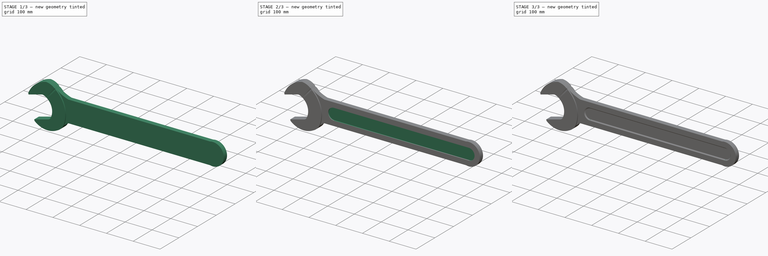
[diagram: build sequence overview — one tinted view per stage of 3, left to right]
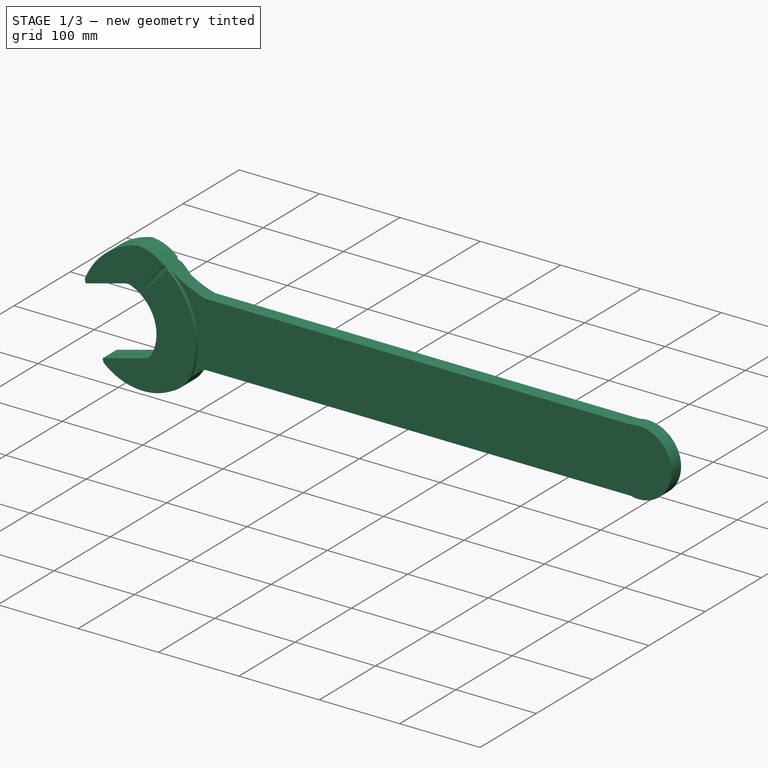
[diagram: stage 1 of 3 — iso view after this stage's code; geometry added in this stage tinted green]
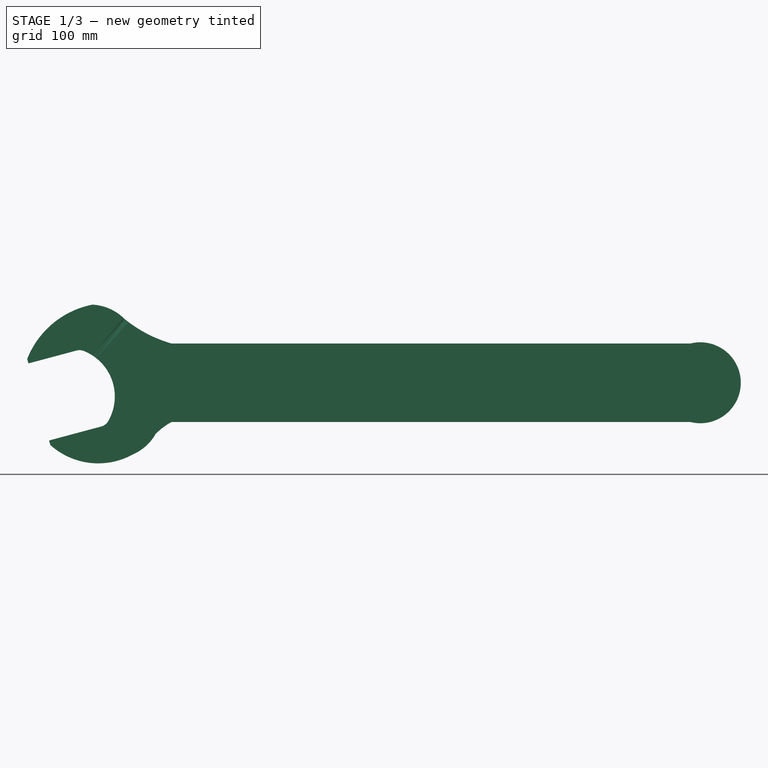
[diagram: stage 1 of 3 — front view after this stage's code; geometry added in this stage tinted green]
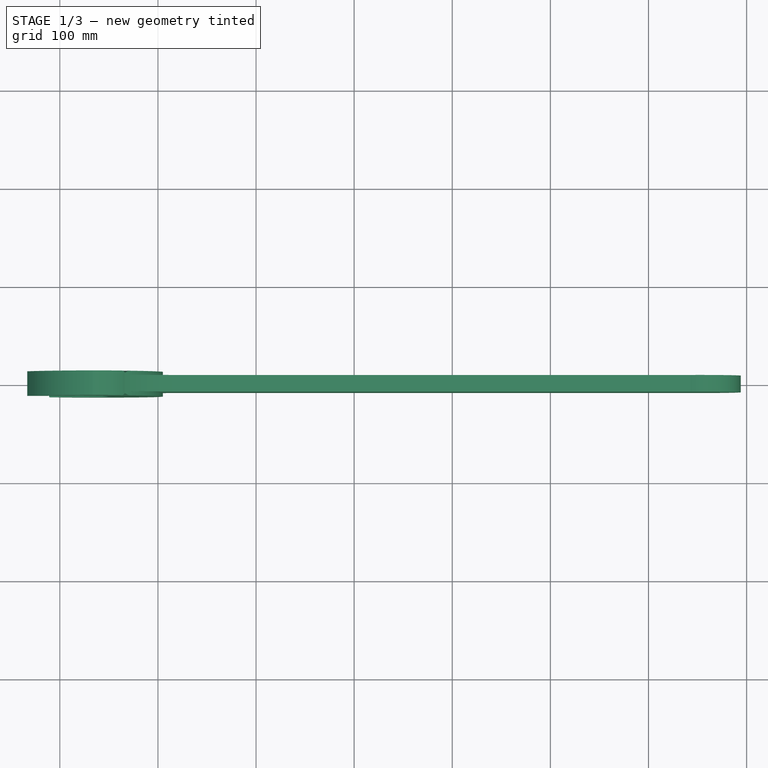
[diagram: stage 1 of 3 — top view after this stage's code; geometry added in this stage tinted green]
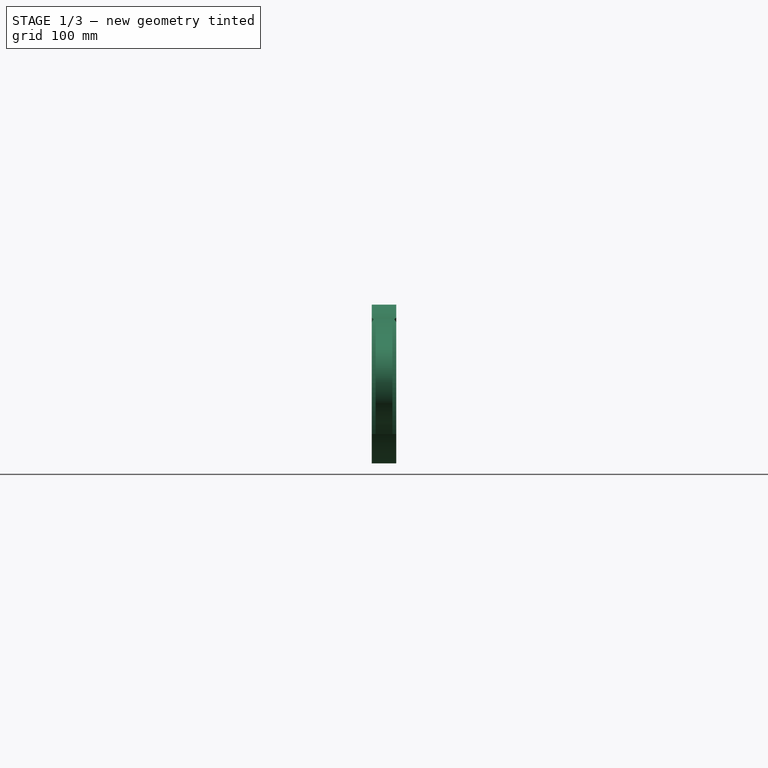
[diagram: stage 1 of 3 — right view after this stage's code; geometry added in this stage tinted green]
FCSTD DOCUMENT  (FreeCAD 0.21R33771 (Git))
Label: gajechnij1
License: All rights reserved
LicenseURL: http://en.wikipedia.org/wiki/All_rights_reserved
objects: Sketcher::SketchObject×4, PartDesign::Pad×2, PartDesign::Plane×2, PartDesign::Pocket×2, PartDesign::Chamfer×2, PartDesign::Body×1
note: 19 computed .brp shape members not serialized (recipe doc carries the construction recipe); baked Part::Feature solids carry a one-line shape summary decoded from their .brp

FEATURE [Sketcher::SketchObject] Sketch
  FullyConstrained = false
  MapMode = 5
  Placement = pos=(0,0,0) rot=(1,0,0;1.5708rad)
  Support = -> [XZ_Plane]
  sketch-geometry (32):
    g0: ArcOfCircle CenterX=-94.9065 CenterY=72.2853 CenterZ=0 NormalX=0 NormalY=0 NormalZ=1 AngleXU=0 Radius=100 StartAngle=5.89494 EndAngle=7.19503
    g1: ArcOfCircle CenterX=-69.3883 CenterY=116.352 CenterZ=0 NormalX=0 NormalY=0 NormalZ=1 AngleXU=0 Radius=50 StartAngle=0.77529 EndAngle=1.51739
    g2: ArcOfCircle CenterX=-49.4821 CenterY=77.9471 CenterZ=0 NormalX=0 NormalY=0 NormalZ=1 AngleXU=0 Radius=90 StartAngle=1.76351 EndAngle=2.76625
    g3: LineSegment StartX=-131.986 StartY=106.349 StartZ=0 EndX=-83.0466 EndY=119.462 EndZ=0
    g4: LineSegment StartX=-57.8758 StartY=42.0398 StartZ=0 EndX=-110.945 EndY=27.82 EndZ=0
    g5: ArcOfCircle CenterX=-93.9405 CenterY=72.5441 CenterZ=0 NormalX=0 NormalY=0 NormalZ=1 AngleXU=0 Radius=50 StartAngle=5.76222 EndAngle=7.47668
    g6: ArcOfCircle CenterX=-79.9408 CenterY=107.871 CenterZ=0 NormalX=0 NormalY=0 NormalZ=1 AngleXU=0 Radius=12 StartAngle=1.19349 EndAngle=1.8326
    g7: ArcOfCircle CenterX=-60.9816 CenterY=53.6309 CenterZ=0 NormalX=0 NormalY=0 NormalZ=1 AngleXU=0 Radius=12 StartAngle=4.97419 EndAngle=5.76222
    g8: LineSegment StartX=128.45 StartY=132.133 StartZ=0 EndX=-335.336 EndY=7.8623 EndZ=0
    g9: LineSegment StartX=-155.813 StartY=183.681 StartZ=0 EndX=-69.9856 EndY=-136.632 EndZ=0
    g10: LineSegment StartX=-154.799 StartY=191.489 StartZ=0 EndX=-63.0997 EndY=-150.739 EndZ=0
    g11: GeomPoint X=-45.6442 Y=85.485 Z=0
    g12: ArcOfCircle CenterX=-45.7284 CenterY=59.293 CenterZ=0 NormalX=0 NormalY=0 NormalZ=1 AngleXU=0 Radius=50 StartAngle=5.12304 EndAngle=5.76273
    g13: ArcOfCircle CenterX=-60.85 CenterY=77.4972 CenterZ=0 NormalX=0 NormalY=0 NormalZ=1 AngleXU=0 Radius=73.026 StartAngle=3.97934 EndAngle=5.2135
    g14: LineSegment StartX=-66.7193 StartY=166.281 StartZ=0 EndX=-25.7683 EndY=13.4498 EndZ=0
    g15: LineSegment StartX=-33.6774 StartY=151.348 StartZ=0 EndX=-2.34888 EndY=34.429 EndZ=0
    g16: ArcOfCircle CenterX=51.1394 CenterY=256.378 CenterZ=0 NormalX=0 NormalY=0 NormalZ=1 AngleXU=0 Radius=135 StartAngle=4.03306 EndAngle=4.43239
    g17: LineSegment StartX=13.832 StartY=126.635 StartZ=0 EndX=542.64 EndY=126.635 EndZ=0
    g18: ArcOfCircle CenterX=45.9304 CenterY=-12.7447 CenterZ=0 NormalX=0 NormalY=0 NormalZ=1 AngleXU=0 Radius=67.5 StartAngle=2.06636 EndAngle=2.36778
    g19: LineSegment StartX=13.832 StartY=46.6349 StartZ=0 EndX=542.64 EndY=46.6349 EndZ=0
    g20: GeomPoint X=153.279 Y=126.635 Z=0
    g21: ArcOfCircle CenterX=552.783 CenterY=86.6349 CenterZ=0 NormalX=0 NormalY=0 NormalZ=1 AngleXU=0 Radius=41.2661 StartAngle=4.46404 EndAngle=8.10233
    g22: ArcOfCircle CenterX=49.3558 CenterY=86.6349 CenterZ=0 NormalX=0 NormalY=0 NormalZ=1 AngleXU=0 Radius=21.5438 StartAngle=1.5708 EndAngle=4.71239
    g23: ArcOfCircle CenterX=552.783 CenterY=86.6349 CenterZ=0 NormalX=0 NormalY=0 NormalZ=1 AngleXU=0 Radius=21.5438 StartAngle=4.71239 EndAngle=7.85398
    g24: LineSegment StartX=49.3558 StartY=65.0911 StartZ=0 EndX=552.783 EndY=65.0911 EndZ=0
    g25: LineSegment StartX=552.783 StartY=108.179 StartZ=0 EndX=49.3558 EndY=108.179 EndZ=0
    g26: GeomPoint X=-133.217 Y=110.94 Z=0
    g27: GeomPoint X=-131.986 Y=106.349 Z=0
    g28: LineSegment StartX=-133.217 StartY=110.94 StartZ=0 EndX=-131.986 EndY=106.349 EndZ=0
    g29: GeomPoint X=-110.945 Y=27.82 Z=0
    g30: GeomPoint X=-109.714 Y=23.2287 Z=0
    g31: LineSegment StartX=-110.945 StartY=27.82 StartZ=0 EndX=-109.714 EndY=23.2287 EndZ=0
  constraints (74):
    c: Radius(g0) = 100
    c: Coincident(g1,g0)
    c: Radius(g1) = 50
    c: Coincident(g2,g1)
    c: Radius(g2) = 90
    c: Parallel(g3,g4)
    c: Radius(g5) = 50
    c: Tangent(g5,g6) = -1.5708
    c: Tangent(g3,g6) = 1.5708
    c: Tangent(g5,g7) = -1.5708
    c: Tangent(g4,g7) = 1.5708
    c: Equal(g7,g6)
    c: Radius(g6) = 12
    c: Angle(g-1,g8) = 0.261799
    c: Parallel(g3,g8)
    c: Perpendicular(g8,g9)
    c: Parallel(g9,g10)
    c: Distance(g9,g10) = 3
    c: Distance(g3,g8) = 42.5
    c: PointOnObject(g5,g8)
    c: PointOnObject(g0,g8)
    c: Distance(g0,g5) = 1
    c: PointOnObject(g11,g5)
    c: PointOnObject(g11,g8)
    c: Distance(g11,g10) = 78
    c: PointOnObject(g12,g5)
    c: Coincident(g12,g0)
    c: Radius(g12) = 50
    c: Coincident(g13,g12)
    c: Coincident(g14,g1)
    c: Coincident(g14,g12)
    c: Coincident(g15,g0)
    c: Coincident(g15,g0)
    c: Parallel(g14,g15)
    c: Parallel(g14,g10)
    c: Coincident(g16,g0)
    c: Coincident(g18,g0)
    c: Coincident(g17,g16)
    c: Coincident(g19,g18)
    c: Parallel(g17,g19)
    c: Parallel(g19,g-1)
    c: PointOnObject(g20,g17)
    c: Distance(g20,g19) = 80
    c: Vertical(g16,g18)
    c: Radius(g16) = 135
    c: Radius(g18) = 67.5
    c: Vertical(g19,g17)
    c: Coincident(g21,g17)
    c: Coincident(g21,g19)
    c: Tangent(g22,g24) = -1.5708
    c: Tangent(g24,g23) = -1.5708
    c: Tangent(g23,g25) = -1.5708
    c: Tangent(g25,g22) = -1.5708
    c: Equal(g22,g23)
    c: Coincident(g23,g21)
    c: Horizontal(g24)
    c: DistanceX(g11,g22) = 95
    c: PointOnObject(g26,g10)
    c: PointOnObject(g26,g2)
    c: PointOnObject(g27,g10)
    c: PointOnObject(g27,g3)
    c: Coincident(g28,g26)
    c: Coincident(g28,g27)
    c: PointOnObject(g2,g28)
    c: PointOnObject(g3,g10)
    c: PointOnObject(g29,g10)
    c: PointOnObject(g30,g10)
    c: PointOnObject(g30,g13)
    c: PointOnObject(g29,g4)
    c: PointOnObject(g4,g10)
    c: PointOnObject(g13,g10)
    c: Coincident(g31,g4)
    c: Coincident(g31,g13)
    c: Equal(g28,g31)
FEATURE [PartDesign::Pad] Pad
  Direction = (0,-1,2e-16)
  Length = 25
  Length2 = 10
  Midplane = true
  Placement = pos=(0,0,0) rot=(1,0,0;1.5708rad)
  Profile = -> Sketch
  ReferenceAxis = -> Sketch [N_Axis]
  Refine = true
  Type = 0
FEATURE [PartDesign::Plane] DatumPlane
  Length = 801.543
  MapMode = 2
  Placement = pos=(0,0,0) rot=(1,0,0;1.5708rad)
  ResizeMode = 0
  Support = -> [Pad]
  Width = 265.861
FEATURE [Sketcher::SketchObject] Sketch001
  FullyConstrained = false
  MapMode = 5
  Placement = pos=(0,0,0) rot=(1,0,0;1.5708rad)
  Support = -> [XZ_Plane]
  sketch-geometry (32):
    g0: ArcOfCircle CenterX=-94.9065 CenterY=72.2853 CenterZ=0 NormalX=0 NormalY=0 NormalZ=1 AngleXU=0 Radius=100 StartAngle=5.89494 EndAngle=7.19503
    g1: ArcOfCircle CenterX=-69.3883 CenterY=116.352 CenterZ=0 NormalX=0 NormalY=0 NormalZ=1 AngleXU=0 Radius=50 StartAngle=0.77529 EndAngle=1.51739
    g2: ArcOfCircle CenterX=-49.4821 CenterY=77.9471 CenterZ=0 NormalX=0 NormalY=0 NormalZ=1 AngleXU=0 Radius=90 StartAngle=1.76351 EndAngle=2.76625
    g3: LineSegment StartX=-131.986 StartY=106.349 StartZ=0 EndX=-83.0466 EndY=119.462 EndZ=0
    g4: LineSegment StartX=-57.8758 StartY=42.0398 StartZ=0 EndX=-110.945 EndY=27.82 EndZ=0
    g5: ArcOfCircle CenterX=-93.9405 CenterY=72.5441 CenterZ=0 NormalX=0 NormalY=0 NormalZ=1 AngleXU=0 Radius=50 StartAngle=5.76222 EndAngle=7.47668
    g6: ArcOfCircle CenterX=-79.9408 CenterY=107.871 CenterZ=0 NormalX=0 NormalY=0 NormalZ=1 AngleXU=0 Radius=12 StartAngle=1.19349 EndAngle=1.8326
    g7: ArcOfCircle CenterX=-60.9816 CenterY=53.6309 CenterZ=0 NormalX=0 NormalY=0 NormalZ=1 AngleXU=0 Radius=12 StartAngle=4.97419 EndAngle=5.76222
    g8: LineSegment StartX=128.45 StartY=132.133 StartZ=0 EndX=-335.336 EndY=7.8623 EndZ=0
    g9: LineSegment StartX=-155.813 StartY=183.681 StartZ=0 EndX=-69.9856 EndY=-136.632 EndZ=0
    g10: LineSegment StartX=-154.799 StartY=191.489 StartZ=0 EndX=-63.0997 EndY=-150.739 EndZ=0
    g11: GeomPoint X=-45.6442 Y=85.485 Z=0
    g12: ArcOfCircle CenterX=-45.7284 CenterY=59.293 CenterZ=0 NormalX=0 NormalY=0 NormalZ=1 AngleXU=0 Radius=50 StartAngle=5.12304 EndAngle=5.76273
    g13: ArcOfCircle CenterX=-60.85 CenterY=77.4972 CenterZ=0 NormalX=0 NormalY=0 NormalZ=1 AngleXU=0 Radius=73.026 StartAngle=3.97934 EndAngle=5.2135
    g14: LineSegment StartX=-66.7193 StartY=166.281 StartZ=0 EndX=-25.7683 EndY=13.4498 EndZ=0
    g15: LineSegment StartX=-33.6774 StartY=151.348 StartZ=0 EndX=-2.34888 EndY=34.429 EndZ=0
    g16: ArcOfCircle CenterX=51.1394 CenterY=256.378 CenterZ=0 NormalX=0 NormalY=0 NormalZ=1 AngleXU=0 Radius=135 StartAngle=4.03306 EndAngle=4.43239
    g17: LineSegment StartX=13.832 StartY=126.635 StartZ=0 EndX=542.64 EndY=126.635 EndZ=0
    g18: ArcOfCircle CenterX=45.9304 CenterY=-12.7447 CenterZ=0 NormalX=0 NormalY=0 NormalZ=1 AngleXU=0 Radius=67.5 StartAngle=2.06636 EndAngle=2.36778
    g19: LineSegment StartX=13.832 StartY=46.6349 StartZ=0 EndX=542.64 EndY=46.6349 EndZ=0
    g20: GeomPoint X=153.279 Y=126.635 Z=0
    g21: ArcOfCircle CenterX=552.783 CenterY=86.6349 CenterZ=0 NormalX=0 NormalY=0 NormalZ=1 AngleXU=0 Radius=41.2661 StartAngle=4.46404 EndAngle=8.10233
    g22: ArcOfCircle CenterX=49.3558 CenterY=86.6349 CenterZ=0 NormalX=0 NormalY=0 NormalZ=1 AngleXU=0 Radius=21.5438 StartAngle=1.5708 EndAngle=4.71239
    g23: ArcOfCircle CenterX=552.783 CenterY=86.6349 CenterZ=0 NormalX=0 NormalY=0 NormalZ=1 AngleXU=0 Radius=21.5438 StartAngle=4.71239 EndAngle=7.85398
    g24: LineSegment StartX=49.3558 StartY=65.0911 StartZ=0 EndX=552.783 EndY=65.0911 EndZ=0
    g25: LineSegment StartX=552.783 StartY=108.179 StartZ=0 EndX=49.3558 EndY=108.179 EndZ=0
    g26: GeomPoint X=-133.217 Y=110.94 Z=0
    g27: GeomPoint X=-131.986 Y=106.349 Z=0
    g28: LineSegment StartX=-133.217 StartY=110.94 StartZ=0 EndX=-131.986 EndY=106.349 EndZ=0
    g29: GeomPoint X=-110.945 Y=27.82 Z=0
    g30: GeomPoint X=-109.714 Y=23.2287 Z=0
    g31: LineSegment StartX=-110.945 StartY=27.82 StartZ=0 EndX=-109.714 EndY=23.2287 EndZ=0
  constraints (74):
    c: Radius(g0) = 100
    c: Coincident(g1,g0)
    c: Radius(g1) = 50
    c: Coincident(g2,g1)
    c: Radius(g2) = 90
    c: Parallel(g3,g4)
    c: Radius(g5) = 50
    c: Tangent(g5,g6) = -1.5708
    c: Tangent(g3,g6) = 1.5708
    c: Tangent(g5,g7) = -1.5708
    c: Tangent(g4,g7) = 1.5708
    c: Equal(g7,g6)
    c: Radius(g6) = 12
    c: Angle(g-1,g8) = 0.261799
    c: Parallel(g3,g8)
    c: Perpendicular(g8,g9)
    c: Parallel(g9,g10)
    c: Distance(g9,g10) = 3
    c: Distance(g3,g8) = 42.5
    c: PointOnObject(g5,g8)
    c: PointOnObject(g0,g8)
    c: Distance(g0,g5) = 1
    c: PointOnObject(g11,g5)
    c: PointOnObject(g11,g8)
    c: Distance(g11,g10) = 78
    c: PointOnObject(g12,g5)
    c: Coincident(g12,g0)
    c: Radius(g12) = 50
    c: Coincident(g13,g12)
    c: Coincident(g14,g1)
    c: Coincident(g14,g12)
    c: Coincident(g15,g0)
    c: Coincident(g15,g0)
    c: Parallel(g14,g15)
    c: Parallel(g14,g10)
    c: Coincident(g16,g0)
    c: Coincident(g18,g0)
    c: Coincident(g17,g16)
    c: Coincident(g19,g18)
    c: Parallel(g17,g19)
    c: Parallel(g19,g-1)
    c: PointOnObject(g20,g17)
    c: Distance(g20,g19) = 80
    c: Vertical(g16,g18)
    c: Radius(g16) = 135
    c: Radius(g18) = 67.5
    c: Vertical(g19,g17)
    c: Coincident(g21,g17)
    c: Coincident(g21,g19)
    c: Tangent(g22,g24) = -1.5708
    c: Tangent(g24,g23) = -1.5708
    c: Tangent(g23,g25) = -1.5708
    c: Tangent(g25,g22) = -1.5708
    c: Equal(g22,g23)
    c: Coincident(g23,g21)
    c: Horizontal(g24)
    c: DistanceX(g11,g22) = 95
    c: PointOnObject(g26,g10)
    c: PointOnObject(g26,g2)
    c: PointOnObject(g27,g10)
    c: PointOnObject(g27,g3)
    c: Coincident(g28,g26)
    c: Coincident(g28,g27)
    c: PointOnObject(g2,g28)
    c: PointOnObject(g3,g10)
    c: PointOnObject(g29,g10)
    c: PointOnObject(g30,g10)
    c: PointOnObject(g30,g13)
    c: PointOnObject(g29,g4)
    c: PointOnObject(g4,g10)
    c: PointOnObject(g13,g10)
    c: Coincident(g31,g4)
    c: Coincident(g31,g13)
    c: Equal(g28,g31)
FEATURE [PartDesign::Pad] Pad001
  BaseFeature = -> Pad
  Direction = (0,-1,2e-16)
  Length = 17
  Length2 = 10
  Midplane = true
  Placement = pos=(0,0,0) rot=(1,0,0;1.5708rad)
  Profile = -> Sketch001
  ReferenceAxis = -> Sketch001 [N_Axis]
  Refine = true
  Type = 0
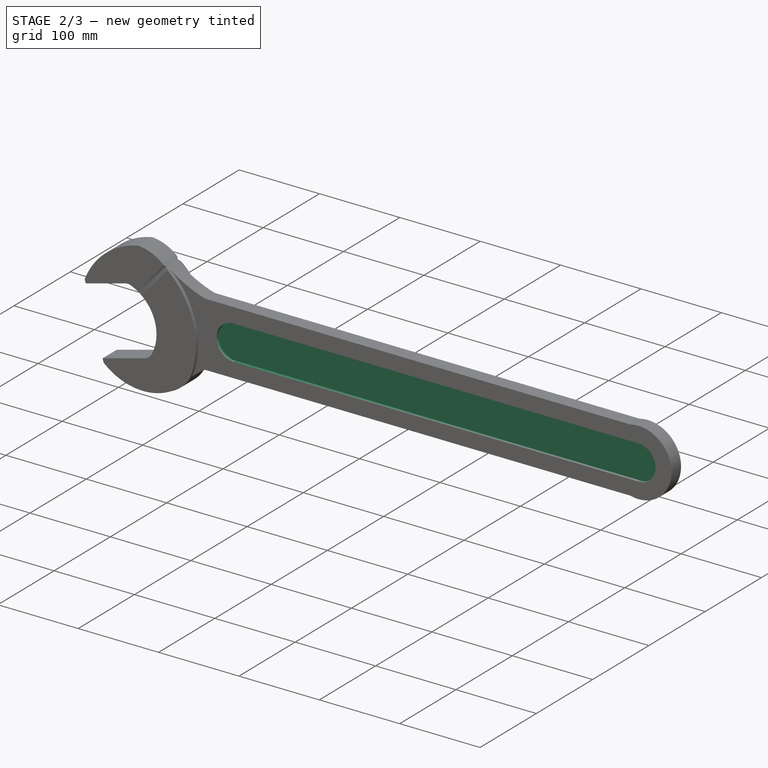
[diagram: stage 2 of 3 — iso view after this stage's code; geometry added in this stage tinted green]
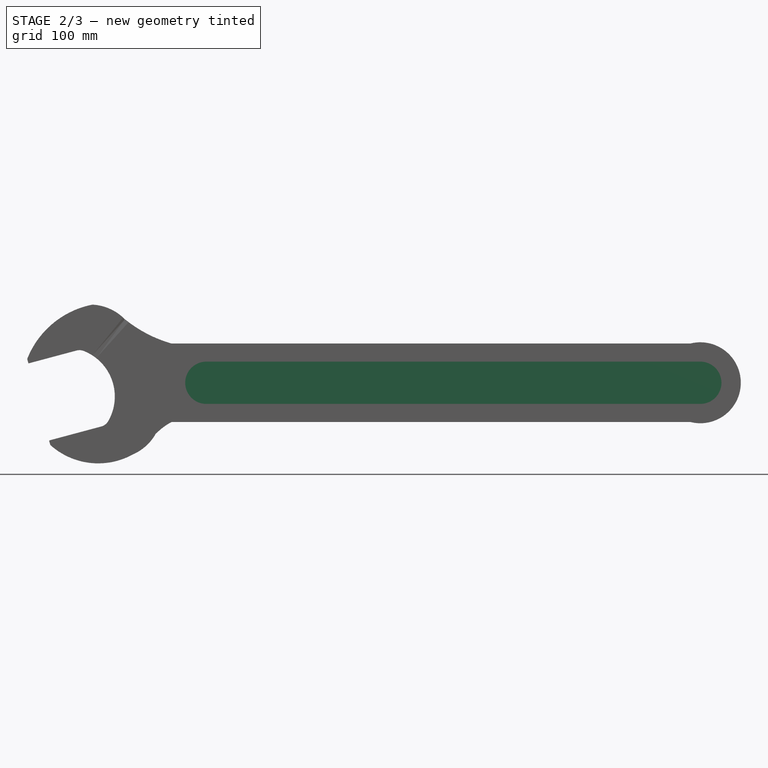
[diagram: stage 2 of 3 — front view after this stage's code; geometry added in this stage tinted green]
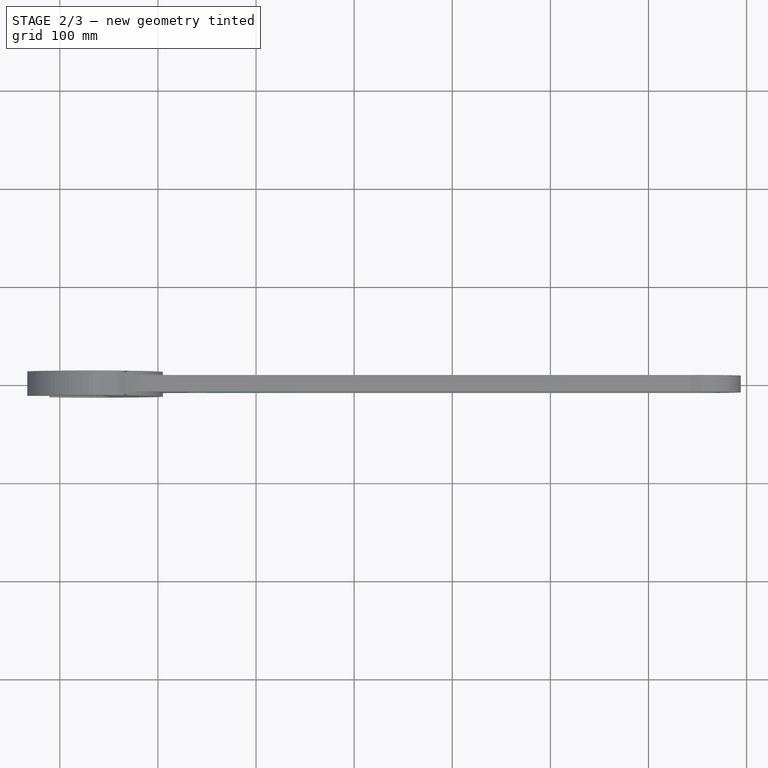
[diagram: stage 2 of 3 — top view after this stage's code; geometry added in this stage tinted green]
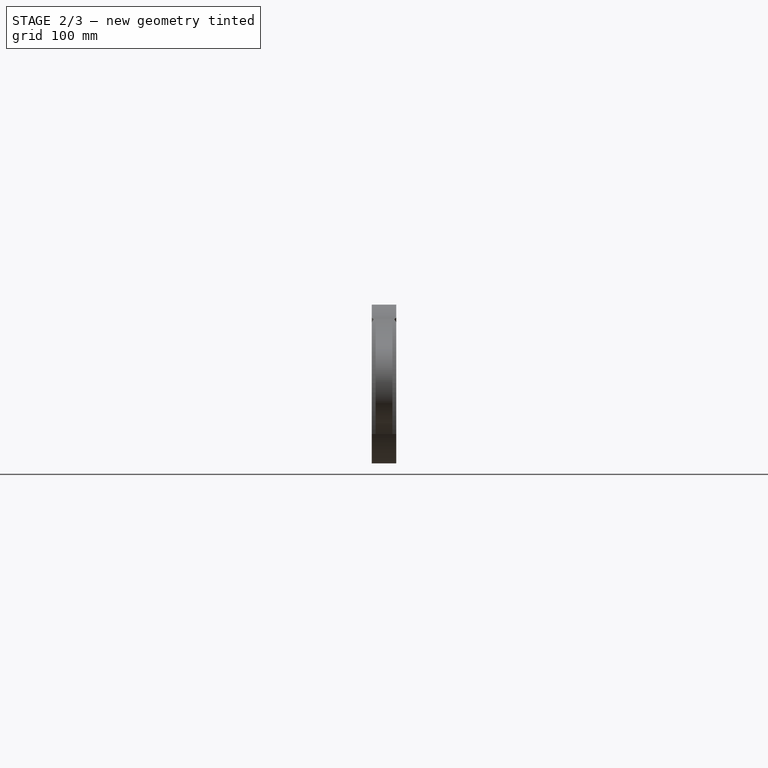
[diagram: stage 2 of 3 — right view after this stage's code; geometry added in this stage tinted green]
FEATURE [PartDesign::Plane] DatumPlane001
  Length = 801.543
  MapMode = 5
  Placement = pos=(0,-8.5,1.9e-15) rot=(1,0,0;1.5708rad)
  ResizeMode = 0
  Support = -> [Pad001]
  Width = 265.861
FEATURE [Sketcher::SketchObject] Sketch002
  AttachmentOffset = pos=(0,0,9) rot=(0,0,1;0rad)
  FullyConstrained = false
  MapMode = 5
  Placement = pos=(0,-9,2e-15) rot=(1,0,0;1.5708rad)
  Support = -> [XZ_Plane,DatumPlane001]
  sketch-geometry (32):
    g0: ArcOfCircle CenterX=-94.9065 CenterY=72.2853 CenterZ=0 NormalX=0 NormalY=0 NormalZ=1 AngleXU=0 Radius=100 StartAngle=5.89494 EndAngle=7.19503
    g1: ArcOfCircle CenterX=-69.3883 CenterY=116.352 CenterZ=0 NormalX=0 NormalY=0 NormalZ=1 AngleXU=0 Radius=50 StartAngle=0.77529 EndAngle=1.51739
    g2: ArcOfCircle CenterX=-49.4821 CenterY=77.9471 CenterZ=0 NormalX=0 NormalY=0 NormalZ=1 AngleXU=0 Radius=90 StartAngle=1.76351 EndAngle=2.76625
    g3: LineSegment StartX=-131.986 StartY=106.349 StartZ=0 EndX=-83.0466 EndY=119.462 EndZ=0
    g4: LineSegment StartX=-57.8758 StartY=42.0398 StartZ=0 EndX=-110.945 EndY=27.82 EndZ=0
    g5: ArcOfCircle CenterX=-93.9405 CenterY=72.5441 CenterZ=0 NormalX=0 NormalY=0 NormalZ=1 AngleXU=0 Radius=50 StartAngle=5.76222 EndAngle=7.47668
    g6: ArcOfCircle CenterX=-79.9408 CenterY=107.871 CenterZ=0 NormalX=0 NormalY=0 NormalZ=1 AngleXU=0 Radius=12 StartAngle=1.19349 EndAngle=1.8326
    g7: ArcOfCircle CenterX=-60.9816 CenterY=53.6309 CenterZ=0 NormalX=0 NormalY=0 NormalZ=1 AngleXU=0 Radius=12 StartAngle=4.97419 EndAngle=5.76222
    g8: LineSegment StartX=128.45 StartY=132.133 StartZ=0 EndX=-335.336 EndY=7.8623 EndZ=0
    g9: LineSegment StartX=-155.813 StartY=183.681 StartZ=0 EndX=-69.9856 EndY=-136.632 EndZ=0
    g10: LineSegment StartX=-154.799 StartY=191.489 StartZ=0 EndX=-63.0997 EndY=-150.739 EndZ=0
    g11: GeomPoint X=-45.6442 Y=85.485 Z=0
    g12: ArcOfCircle CenterX=-45.7284 CenterY=59.293 CenterZ=0 NormalX=0 NormalY=0 NormalZ=1 AngleXU=0 Radius=50 StartAngle=5.12304 EndAngle=5.76273
    g13: ArcOfCircle CenterX=-60.85 CenterY=77.4972 CenterZ=0 NormalX=0 NormalY=0 NormalZ=1 AngleXU=0 Radius=73.026 StartAngle=3.97934 EndAngle=5.2135
    g14: LineSegment StartX=-66.7193 StartY=166.281 StartZ=0 EndX=-25.7683 EndY=13.4498 EndZ=0
    g15: LineSegment StartX=-33.6774 StartY=151.348 StartZ=0 EndX=-2.34888 EndY=34.429 EndZ=0
    g16: ArcOfCircle CenterX=51.1394 CenterY=256.378 CenterZ=0 NormalX=0 NormalY=0 NormalZ=1 AngleXU=0 Radius=135 StartAngle=4.03306 EndAngle=4.43239
    g17: LineSegment StartX=13.832 StartY=126.635 StartZ=0 EndX=542.64 EndY=126.635 EndZ=0
    g18: ArcOfCircle CenterX=45.9304 CenterY=-12.7447 CenterZ=0 NormalX=0 NormalY=0 NormalZ=1 AngleXU=0 Radius=67.5 StartAngle=2.06636 EndAngle=2.36778
    g19: LineSegment StartX=13.832 StartY=46.6349 StartZ=0 EndX=542.64 EndY=46.6349 EndZ=0
    g20: GeomPoint X=153.279 Y=126.635 Z=0
    g21: ArcOfCircle CenterX=552.783 CenterY=86.6349 CenterZ=0 NormalX=0 NormalY=0 NormalZ=1 AngleXU=0 Radius=41.2661 StartAngle=4.46404 EndAngle=8.10233
    g22: ArcOfCircle CenterX=49.3558 CenterY=86.6349 CenterZ=0 NormalX=0 NormalY=0 NormalZ=1 AngleXU=0 Radius=21.5438 StartAngle=1.5708 EndAngle=4.71239
    g23: ArcOfCircle CenterX=552.783 CenterY=86.6349 CenterZ=0 NormalX=0 NormalY=0 NormalZ=1 AngleXU=0 Radius=21.5438 StartAngle=4.71239 EndAngle=7.85398
    g24: LineSegment StartX=49.3558 StartY=65.0911 StartZ=0 EndX=552.783 EndY=65.0911 EndZ=0
    g25: LineSegment StartX=552.783 StartY=108.179 StartZ=0 EndX=49.3558 EndY=108.179 EndZ=0
    g26: GeomPoint X=-133.217 Y=110.94 Z=0
    g27: GeomPoint X=-131.986 Y=106.349 Z=0
    g28: LineSegment StartX=-133.217 StartY=110.94 StartZ=0 EndX=-131.986 EndY=106.349 EndZ=0
    g29: GeomPoint X=-110.945 Y=27.82 Z=0
    g30: GeomPoint X=-109.714 Y=23.2287 Z=0
    g31: LineSegment StartX=-110.945 StartY=27.82 StartZ=0 EndX=-109.714 EndY=23.2287 EndZ=0
  constraints (74):
    c: Radius(g0) = 100
    c: Coincident(g1,g0)
    c: Radius(g1) = 50
    c: Coincident(g2,g1)
    c: Radius(g2) = 90
    c: Parallel(g3,g4)
    c: Radius(g5) = 50
    c: Tangent(g5,g6) = -1.5708
    c: Tangent(g3,g6) = 1.5708
    c: Tangent(g5,g7) = -1.5708
    c: Tangent(g4,g7) = 1.5708
    c: Equal(g7,g6)
    c: Radius(g6) = 12
    c: Angle(g-1,g8) = 0.261799
    c: Parallel(g3,g8)
    c: Perpendicular(g8,g9)
    c: Parallel(g9,g10)
    c: Distance(g9,g10) = 3
    c: Distance(g3,g8) = 42.5
    c: PointOnObject(g5,g8)
    c: PointOnObject(g0,g8)
    c: Distance(g0,g5) = 1
    c: PointOnObject(g11,g5)
    c: PointOnObject(g11,g8)
    c: Distance(g11,g10) = 78
    c: PointOnObject(g12,g5)
    c: Coincident(g12,g0)
    c: Radius(g12) = 50
    c: Coincident(g13,g12)
    c: Coincident(g14,g1)
    c: Coincident(g14,g12)
    c: Coincident(g15,g0)
    c: Coincident(g15,g0)
    c: Parallel(g14,g15)
    c: Parallel(g14,g10)
    c: Coincident(g16,g0)
    c: Coincident(g18,g0)
    c: Coincident(g17,g16)
    c: Coincident(g19,g18)
    c: Parallel(g17,g19)
    c: Parallel(g19,g-1)
    c: PointOnObject(g20,g17)
    c: Distance(g20,g19) = 80
    c: Vertical(g16,g18)
    c: Radius(g16) = 135
    c: Radius(g18) = 67.5
    c: Vertical(g19,g17)
    c: Coincident(g21,g17)
    c: Coincident(g21,g19)
    c: Tangent(g22,g24) = -1.5708
    c: Tangent(g24,g23) = -1.5708
    c: Tangent(g23,g25) = -1.5708
    c: Tangent(g25,g22) = -1.5708
    c: Equal(g22,g23)
    c: Coincident(g23,g21)
    c: Horizontal(g24)
    c: DistanceX(g11,g22) = 95
    c: PointOnObject(g26,g10)
    c: PointOnObject(g26,g2)
    c: PointOnObject(g27,g10)
    c: PointOnObject(g27,g3)
    c: Coincident(g28,g26)
    c: Coincident(g28,g27)
    c: PointOnObject(g2,g28)
    c: PointOnObject(g3,g10)
    c: PointOnObject(g29,g10)
    c: PointOnObject(g30,g10)
    c: PointOnObject(g30,g13)
    c: PointOnObject(g29,g4)
    c: PointOnObject(g4,g10)
    c: PointOnObject(g13,g10)
    c: Coincident(g31,g4)
    c: Coincident(g31,g13)
    c: Equal(g28,g31)
FEATURE [Sketcher::SketchObject] Sketch003
  AttachmentOffset = pos=(0,0,-9) rot=(0,0,1;0rad)
  FullyConstrained = false
  MapMode = 5
  Placement = pos=(0,9,-2e-15) rot=(1,0,0;1.5708rad)
  Support = -> [XZ_Plane,DatumPlane001]
  sketch-geometry (32):
    g0: ArcOfCircle CenterX=-94.9065 CenterY=72.2853 CenterZ=0 NormalX=0 NormalY=0 NormalZ=1 AngleXU=0 Radius=100 StartAngle=5.89494 EndAngle=7.19503
    g1: ArcOfCircle CenterX=-69.3883 CenterY=116.352 CenterZ=0 NormalX=0 NormalY=0 NormalZ=1 AngleXU=0 Radius=50 StartAngle=0.77529 EndAngle=1.51739
    g2: ArcOfCircle CenterX=-49.4821 CenterY=77.9471 CenterZ=0 NormalX=0 NormalY=0 NormalZ=1 AngleXU=0 Radius=90 StartAngle=1.76351 EndAngle=2.76625
    g3: LineSegment StartX=-131.986 StartY=106.349 StartZ=0 EndX=-83.0466 EndY=119.462 EndZ=0
    g4: LineSegment StartX=-57.8758 StartY=42.0398 StartZ=0 EndX=-110.945 EndY=27.82 EndZ=0
    g5: ArcOfCircle CenterX=-93.9405 CenterY=72.5441 CenterZ=0 NormalX=0 NormalY=0 NormalZ=1 AngleXU=0 Radius=50 StartAngle=5.76222 EndAngle=7.47668
    g6: ArcOfCircle CenterX=-79.9408 CenterY=107.871 CenterZ=0 NormalX=0 NormalY=0 NormalZ=1 AngleXU=0 Radius=12 StartAngle=1.19349 EndAngle=1.8326
    g7: ArcOfCircle CenterX=-60.9816 CenterY=53.6309 CenterZ=0 NormalX=0 NormalY=0 NormalZ=1 AngleXU=0 Radius=12 StartAngle=4.97419 EndAngle=5.76222
    g8: LineSegment StartX=128.45 StartY=132.133 StartZ=0 EndX=-335.336 EndY=7.8623 EndZ=0
    g9: LineSegment StartX=-155.813 StartY=183.681 StartZ=0 EndX=-69.9856 EndY=-136.632 EndZ=0
    g10: LineSegment StartX=-154.799 StartY=191.489 StartZ=0 EndX=-63.0997 EndY=-150.739 EndZ=0
    g11: GeomPoint X=-45.6442 Y=85.485 Z=0
    g12: ArcOfCircle CenterX=-45.7284 CenterY=59.293 CenterZ=0 NormalX=0 NormalY=0 NormalZ=1 AngleXU=0 Radius=50 StartAngle=5.12304 EndAngle=5.76273
    g13: ArcOfCircle CenterX=-60.85 CenterY=77.4972 CenterZ=0 NormalX=0 NormalY=0 NormalZ=1 AngleXU=0 Radius=73.026 StartAngle=3.97934 EndAngle=5.2135
    g14: LineSegment StartX=-66.7193 StartY=166.281 StartZ=0 EndX=-25.7683 EndY=13.4498 EndZ=0
    g15: LineSegment StartX=-33.6774 StartY=151.348 StartZ=0 EndX=-2.34888 EndY=34.429 EndZ=0
    g16: ArcOfCircle CenterX=51.1394 CenterY=256.378 CenterZ=0 NormalX=0 NormalY=0 NormalZ=1 AngleXU=0 Radius=135 StartAngle=4.03306 EndAngle=4.43239
    g17: LineSegment StartX=13.832 StartY=126.635 StartZ=0 EndX=542.64 EndY=126.635 EndZ=0
    g18: ArcOfCircle CenterX=45.9304 CenterY=-12.7447 CenterZ=0 NormalX=0 NormalY=0 NormalZ=1 AngleXU=0 Radius=67.5 StartAngle=2.06636 EndAngle=2.36778
    g19: LineSegment StartX=13.832 StartY=46.6349 StartZ=0 EndX=542.64 EndY=46.6349 EndZ=0
    g20: GeomPoint X=153.279 Y=126.635 Z=0
    g21: ArcOfCircle CenterX=552.783 CenterY=86.6349 CenterZ=0 NormalX=0 NormalY=0 NormalZ=1 AngleXU=0 Radius=41.2661 StartAngle=4.46404 EndAngle=8.10233
    g22: ArcOfCircle CenterX=49.3558 CenterY=86.6349 CenterZ=0 NormalX=0 NormalY=0 NormalZ=1 AngleXU=0 Radius=21.5438 StartAngle=1.5708 EndAngle=4.71239
    g23: ArcOfCircle CenterX=552.783 CenterY=86.6349 CenterZ=0 NormalX=0 NormalY=0 NormalZ=1 AngleXU=0 Radius=21.5438 StartAngle=4.71239 EndAngle=7.85398
    g24: LineSegment StartX=49.3558 StartY=65.0911 StartZ=0 EndX=552.783 EndY=65.0911 EndZ=0
    g25: LineSegment StartX=552.783 StartY=108.179 StartZ=0 EndX=49.3558 EndY=108.179 EndZ=0
    g26: GeomPoint X=-133.217 Y=110.94 Z=0
    g27: GeomPoint X=-131.986 Y=106.349 Z=0
    g28: LineSegment StartX=-133.217 StartY=110.94 StartZ=0 EndX=-131.986 EndY=106.349 EndZ=0
    g29: GeomPoint X=-110.945 Y=27.82 Z=0
    g30: GeomPoint X=-109.714 Y=23.2287 Z=0
    g31: LineSegment StartX=-110.945 StartY=27.82 StartZ=0 EndX=-109.714 EndY=23.2287 EndZ=0
  constraints (74):
    c: Radius(g0) = 100
    c: Coincident(g1,g0)
    c: Radius(g1) = 50
    c: Coincident(g2,g1)
    c: Radius(g2) = 90
    c: Parallel(g3,g4)
    c: Radius(g5) = 50
    c: Tangent(g5,g6) = -1.5708
    c: Tangent(g3,g6) = 1.5708
    c: Tangent(g5,g7) = -1.5708
    c: Tangent(g4,g7) = 1.5708
    c: Equal(g7,g6)
    c: Radius(g6) = 12
    c: Angle(g-1,g8) = 0.261799
    c: Parallel(g3,g8)
    c: Perpendicular(g8,g9)
    c: Parallel(g9,g10)
    c: Distance(g9,g10) = 3
    c: Distance(g3,g8) = 42.5
    c: PointOnObject(g5,g8)
    c: PointOnObject(g0,g8)
    c: Distance(g0,g5) = 1
    c: PointOnObject(g11,g5)
    c: PointOnObject(g11,g8)
    c: Distance(g11,g10) = 78
    c: PointOnObject(g12,g5)
    c: Coincident(g12,g0)
    c: Radius(g12) = 50
    c: Coincident(g13,g12)
    c: Coincident(g14,g1)
    c: Coincident(g14,g12)
    c: Coincident(g15,g0)
    c: Coincident(g15,g0)
    c: Parallel(g14,g15)
    c: Parallel(g14,g10)
    c: Coincident(g16,g0)
    c: Coincident(g18,g0)
    c: Coincident(g17,g16)
    c: Coincident(g19,g18)
    c: Parallel(g17,g19)
    c: Parallel(g19,g-1)
    c: PointOnObject(g20,g17)
    c: Distance(g20,g19) = 80
    c: Vertical(g16,g18)
    c: Radius(g16) = 135
    c: Radius(g18) = 67.5
    c: Vertical(g19,g17)
    c: Coincident(g21,g17)
    c: Coincident(g21,g19)
    c: Tangent(g22,g24) = -1.5708
    c: Tangent(g24,g23) = -1.5708
    c: Tangent(g23,g25) = -1.5708
    c: Tangent(g25,g22) = -1.5708
    c: Equal(g22,g23)
    c: Coincident(g23,g21)
    c: Horizontal(g24)
    c: DistanceX(g11,g22) = 95
    c: PointOnObject(g26,g10)
    c: PointOnObject(g26,g2)
    c: PointOnObject(g27,g10)
    c: PointOnObject(g27,g3)
    c: Coincident(g28,g26)
    c: Coincident(g28,g27)
    c: PointOnObject(g2,g28)
    c: PointOnObject(g3,g10)
    c: PointOnObject(g29,g10)
    c: PointOnObject(g30,g10)
    c: PointOnObject(g30,g13)
    c: PointOnObject(g29,g4)
    c: PointOnObject(g4,g10)
    c: PointOnObject(g13,g10)
    c: Coincident(g31,g4)
    c: Coincident(g31,g13)
    c: Equal(g28,g31)
FEATURE [PartDesign::Pocket] Pocket
  BaseFeature = -> Pad001
  Direction = (0,1,-2e-16)
  Length = 4
  Length2 = 5
  Placement = pos=(0,0,0) rot=(1,0,0;1.5708rad)
  Profile = -> Sketch002
  ReferenceAxis = -> Sketch002 [N_Axis]
  Refine = true
  Type = 0
FEATURE [PartDesign::Pocket] Pocket001
  BaseFeature = -> Pocket
  Direction = (0,1,-2e-16)
  Length = 4
  Length2 = 5
  Placement = pos=(0,0,0) rot=(1,0,0;1.5708rad)
  Profile = -> Sketch003
  ReferenceAxis = -> Sketch003 [N_Axis]
  Refine = true
  Reversed = true
  Type = 0
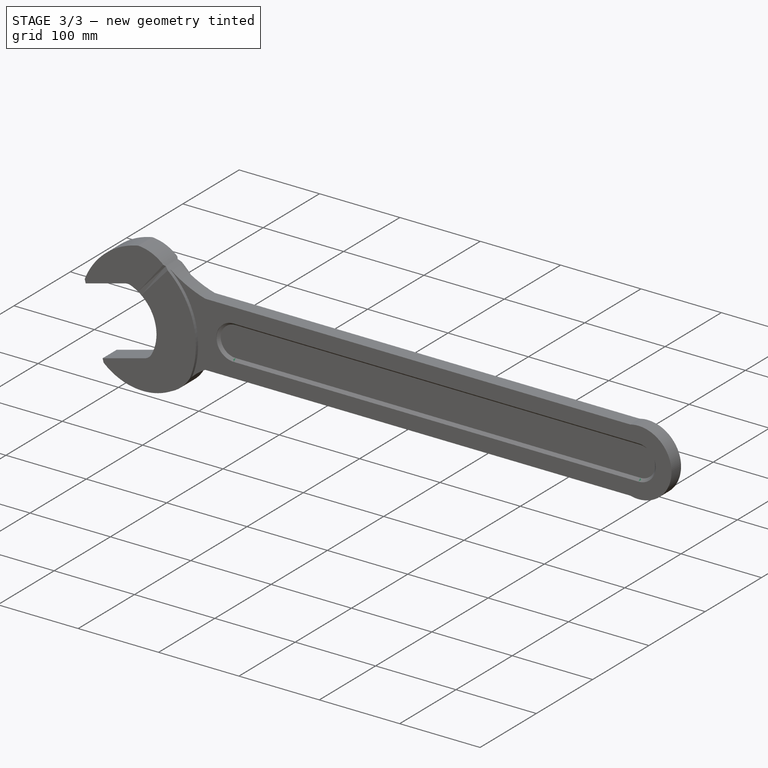
[diagram: stage 3 of 3 — iso view after this stage's code; geometry added in this stage tinted green]
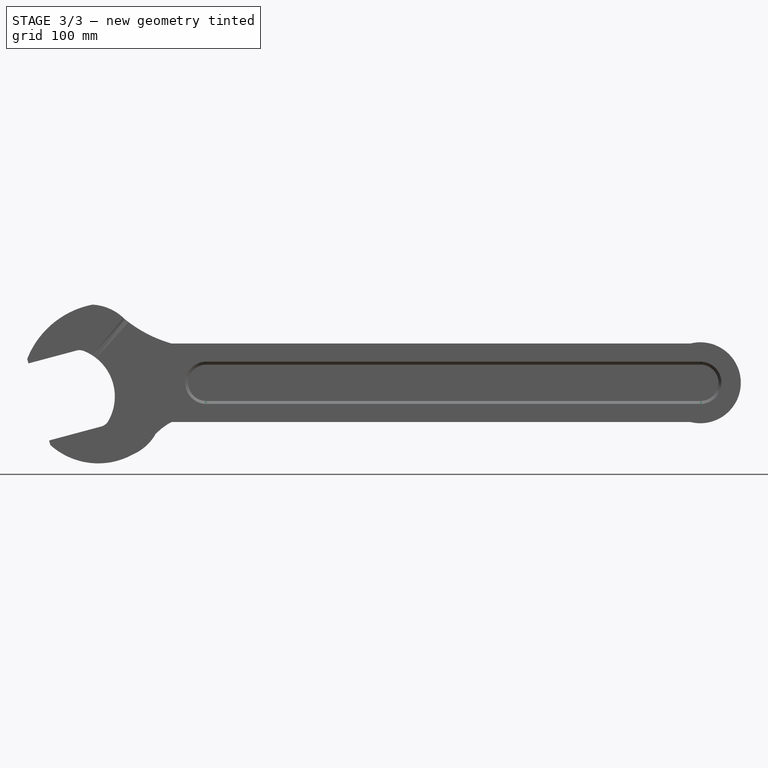
[diagram: stage 3 of 3 — front view after this stage's code; geometry added in this stage tinted green]
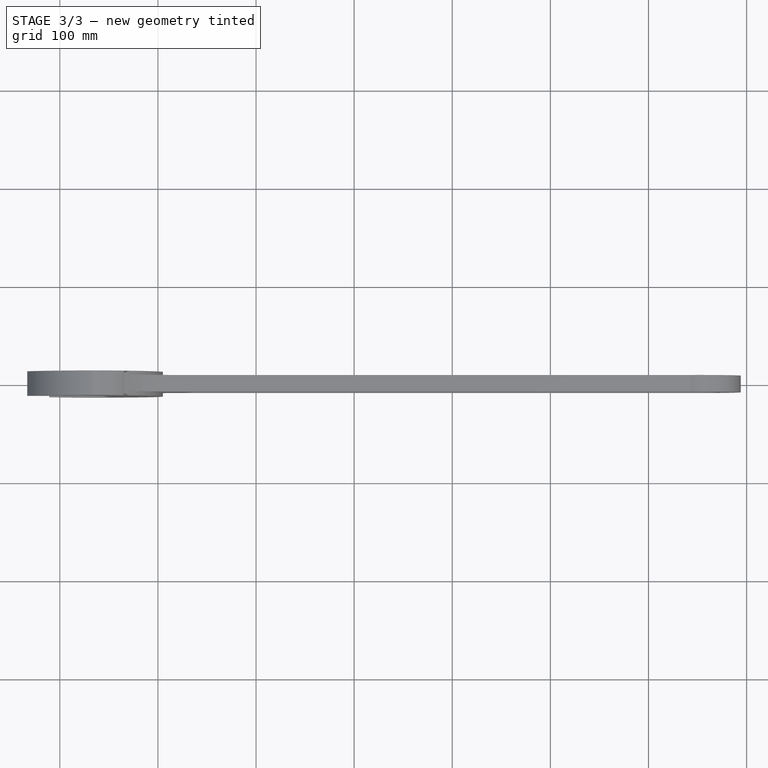
[diagram: stage 3 of 3 — top view after this stage's code; geometry added in this stage tinted green]
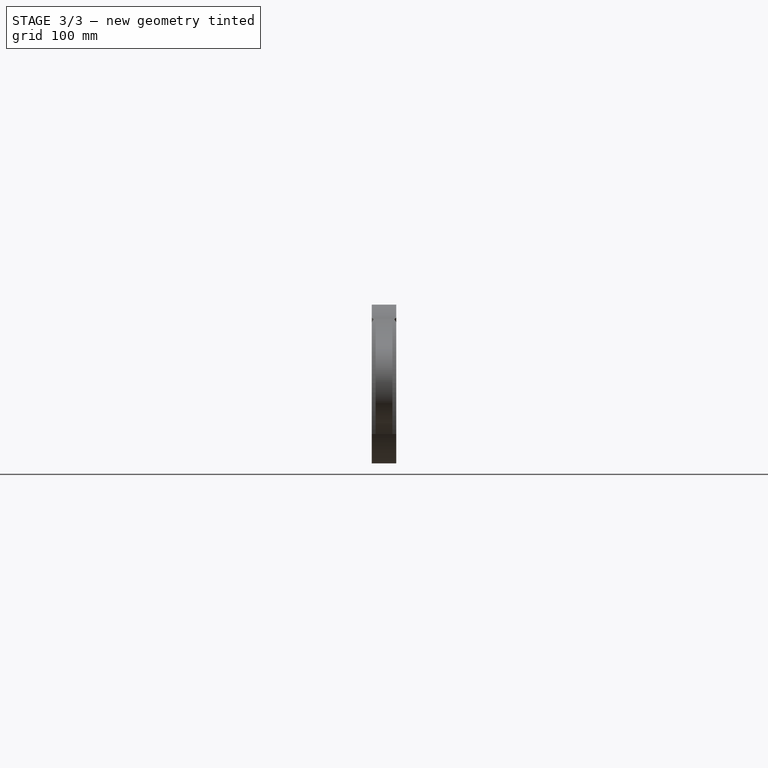
[diagram: stage 3 of 3 — right view after this stage's code; geometry added in this stage tinted green]
FEATURE [PartDesign::Chamfer] Chamfer
  Angle = 45
  Base = -> Pocket001 [Face31]
  BaseFeature = -> Pocket001
  ChamferType = 0
  FlipDirection = false
  Placement = pos=(0,0,0) rot=(1,0,0;1.5708rad)
  Refine = true
  Size = 3
  Size2 = 1
  SupportTransform = false
  UseAllEdges = false
FEATURE [PartDesign::Chamfer] Chamfer001
  Angle = 45
  Base = -> Chamfer [Face36]
  BaseFeature = -> Chamfer
  ChamferType = 0
  FlipDirection = false
  Placement = pos=(0,0,0) rot=(1,0,0;1.5708rad)
  Refine = true
  Size = 3
  Size2 = 1
  SupportTransform = false
  UseAllEdges = false
FEATURE [PartDesign::Body] Body
  Group = -> [Sketch,Pad,DatumPlane,Sketch001,Pad001,DatumPlane001,Sketch002,Sketch003,Pocket,Pocket001,Chamfer,Chamfer001]
  Origin = -> Origin
  Tip = -> Chamfer001
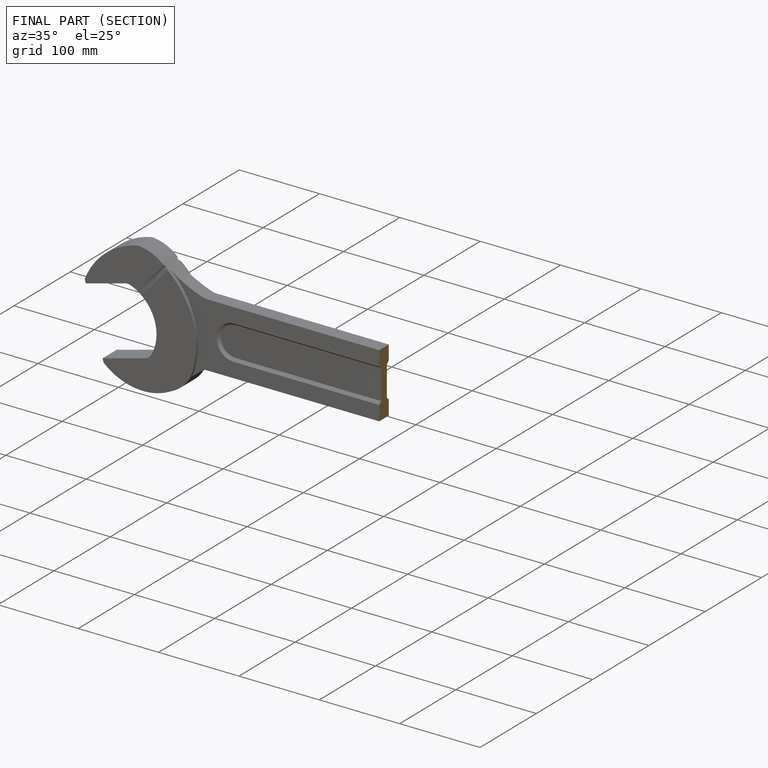
[diagram: finished part — half-section view (interior)]
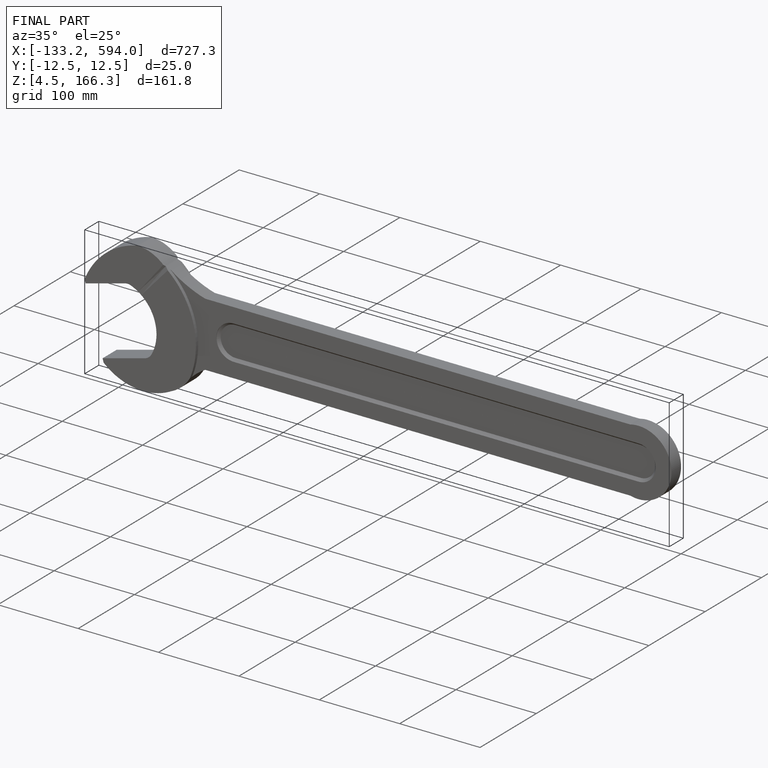
[diagram: finished part — iso view with bounding-box wireframe]
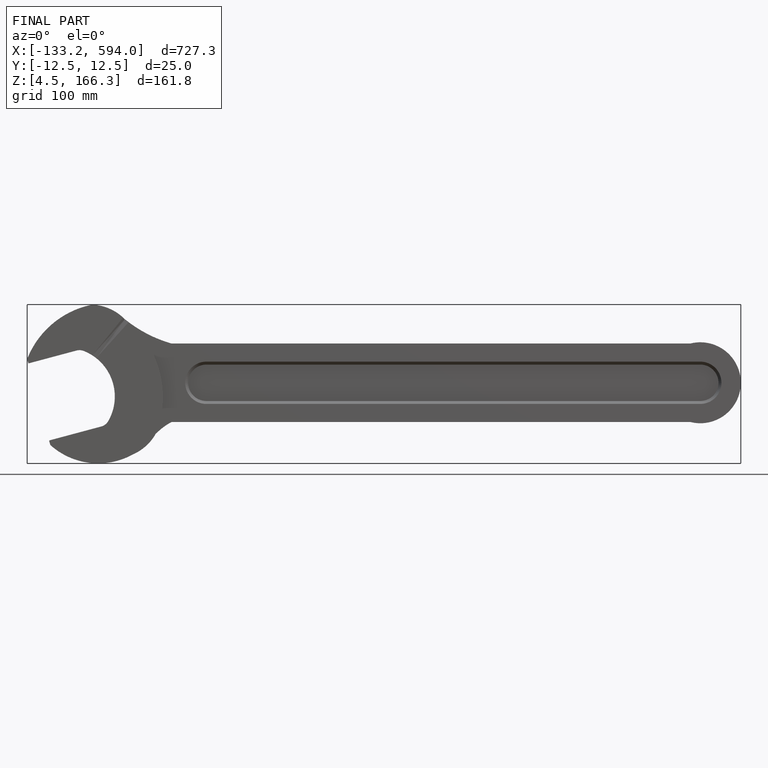
[diagram: finished part — front view with bounding-box wireframe]
